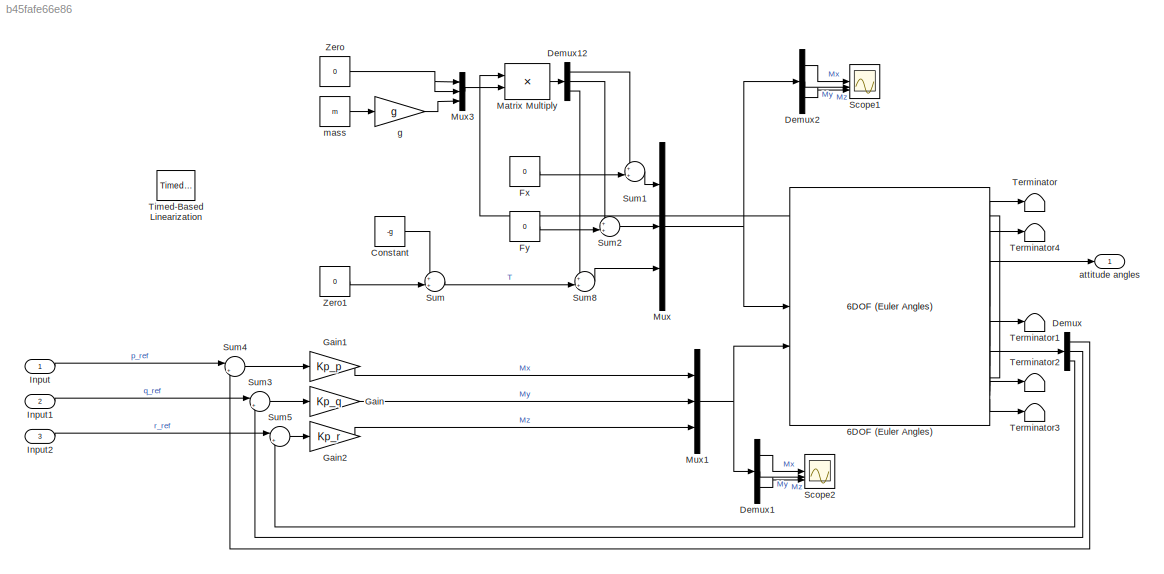
MODEL slx_b45fafe66e86
KIND model
CONFIG AbsTol = auto
CONFIG EnableMultiTasking = off
CONFIG FixedStep = 0.01
CONFIG MaxStep = auto
CONFIG MinStep = auto
CONFIG RelTol = 1e-3
CONFIG SampleTimeConstraint = Unconstrained
CONFIG SolverName = FixedStepAuto
CONFIG StartTime = 0.0
CONFIG StopTime = 10.0
BLOCK [Reference] 6DOF (Euler Angles)  REF=shared6dof/6DOF (Euler Angles)
  LibrarySourceBlock = aerolib6dof2/6DOF (Euler Angles)
  SourceBlock = shared6dof/6DOF (Euler Angles)
  SourceType = 6DOF EoM (Body Axis)
BLOCK [Constant] Constant
  Value = -g
BLOCK [Demux] Demux
  Outputs = 3
BLOCK [Demux] Demux1
  Outputs = 3
BLOCK [Demux] Demux12
  Outputs = 3
BLOCK [Demux] Demux2
  Outputs = 3
BLOCK [Constant] Fx
  Value = 0
BLOCK [Constant] Fy
  Value = 0
BLOCK [Gain] Gain
  Gain = Kp_q
BLOCK [Gain] Gain1
  Gain = Kp_p
BLOCK [Gain] Gain2
  Gain = Kp_r
BLOCK [Inport] Input
BLOCK [Inport] Input1
  Port = 2
BLOCK [Inport] Input2
  Port = 3
BLOCK [Product] Matrix Multiply
  Inputs = **
  Multiplication = Matrix(*)
BLOCK [Mux] Mux
  DisplayOption = bar
  Inputs = 3
BLOCK [Mux] Mux1
  DisplayOption = bar
  Inputs = 3
BLOCK [Mux] Mux3
  DisplayOption = bar
  Inputs = 3
BLOCK [Scope] Scope1
  Floating = off
  NumInputPorts = 3
  ScopeSpecificationString = Simulink.scopes.TimeScopeBlockCfg('CurrentConfiguration', extmgr.ConfigurationSet(extmgr.Configuration('Core','General UI',true),extmgr.Configuration('Core','Source UI',true),extmgr.Configuration('Sources','WiredSimulink',true,'DataLoggingVariableName','ScopeData1'),extmgr.Configuration('Visuals','Time Domain',true,'SerializedDisplays',{struct('MinYLimReal','-10.33025','MaxYLimReal','10.33025','YL...<+1513ch>
BLOCK [Scope] Scope2
  Floating = off
  NumInputPorts = 3
  ScopeSpecificationString = Simulink.scopes.TimeScopeBlockCfg('CurrentConfiguration', extmgr.ConfigurationSet(extmgr.Configuration('Core','General UI',true),extmgr.Configuration('Core','Source UI',true),extmgr.Configuration('Sources','WiredSimulink',true,'DataLoggingVariableName','ScopeData2'),extmgr.Configuration('Visuals','Time Domain',true,'SerializedDisplays',{struct('MinYLimReal','-10.33025','MaxYLimReal','10.33025','YL...<+1513ch>
BLOCK [Sum] Sum
  Inputs = ++|
BLOCK [Sum] Sum1
  Inputs = ++|
BLOCK [Sum] Sum2
  Inputs = ++|
BLOCK [Sum] Sum3
  Inputs = |+-
BLOCK [Sum] Sum4
  Inputs = |+-
BLOCK [Sum] Sum5
  Inputs = |+-
BLOCK [Sum] Sum8
  Inputs = ++|
BLOCK [Terminator] Terminator
BLOCK [Terminator] Terminator1
BLOCK [Terminator] Terminator2
BLOCK [Terminator] Terminator3
BLOCK [Terminator] Terminator4
BLOCK [Reference] Timed-Based Linearization  REF=simulink/Model-Wide
Utilities/Timed-Based
Linearization
  SourceBlock = simulink/Model-Wide\nUtilities/Timed-Based\nLinearization
  SourceType = Timed Linearization
BLOCK [Constant] Zero
  OutDataTypeStr = Inherit: Inherit via back propagation
  Value = 0
BLOCK [Constant] Zero1
  OutDataTypeStr = Inherit: Inherit via back propagation
  Value = 0
BLOCK [Outport] attitude angles
BLOCK [Gain] g
  Gain = g
BLOCK [Constant] mass
  Value = m
LINE 6DOF (Euler Angles):1 -> Terminator:1
LINE 6DOF (Euler Angles):2 -> Terminator4:1
LINE 6DOF (Euler Angles):3 -> attitude angles:1
LINE 6DOF (Euler Angles):4 -> Matrix Multiply:1
LINE 6DOF (Euler Angles):5 -> Terminator1:1
LINE 6DOF (Euler Angles):6 -> Demux:1
LINE 6DOF (Euler Angles):7 -> Terminator2:1
LINE 6DOF (Euler Angles):8 -> Terminator3:1
LINE Constant:1 -> Sum:1
LINE Demux12:1 -> Sum1:1
LINE Demux12:2 -> Sum2:1
LINE Demux12:3 -> Sum8:1
LINE Demux1:1 -> Scope2:1
LINE Demux1:2 -> Scope2:2
LINE Demux1:3 -> Scope2:3
LINE Demux2:1 -> Scope1:1
LINE Demux2:2 -> Scope1:2
LINE Demux2:3 -> Scope1:3
LINE Demux:1 -> Sum4:2
LINE Demux:2 -> Sum3:2
LINE Demux:3 -> Sum5:2
LINE Fx:1 -> Sum1:2
LINE Fy:1 -> Sum2:2
LINE Gain1:1 -> Mux1:1
LINE Gain2:1 -> Mux1:3
LINE Gain:1 -> Mux1:2
LINE Input1:1 -> Sum3:1
LINE Input2:1 -> Sum5:1
LINE Input:1 -> Sum4:1
LINE Matrix Multiply:1 -> Demux12:1
NET Mux1:1 -> 6DOF (Euler Angles):2, Demux1:1
LINE Mux3:1 -> Matrix Multiply:2
NET Mux:1 -> 6DOF (Euler Angles):1, Demux2:1
LINE Sum1:1 -> Mux:1
LINE Sum2:1 -> Mux:2
LINE Sum3:1 -> Gain:1
LINE Sum4:1 -> Gain1:1
LINE Sum5:1 -> Gain2:1
LINE Sum8:1 -> Mux:3
LINE Sum:1 -> Sum8:2
LINE Zero1:1 -> Sum:2
NET Zero:1 -> Mux3:1, Mux3:2
LINE g:1 -> Mux3:3
LINE mass:1 -> g:1
note: NET lines group one-source signal fan-out (src -> all destinations, sorted); 1:1 wires keep LINE
